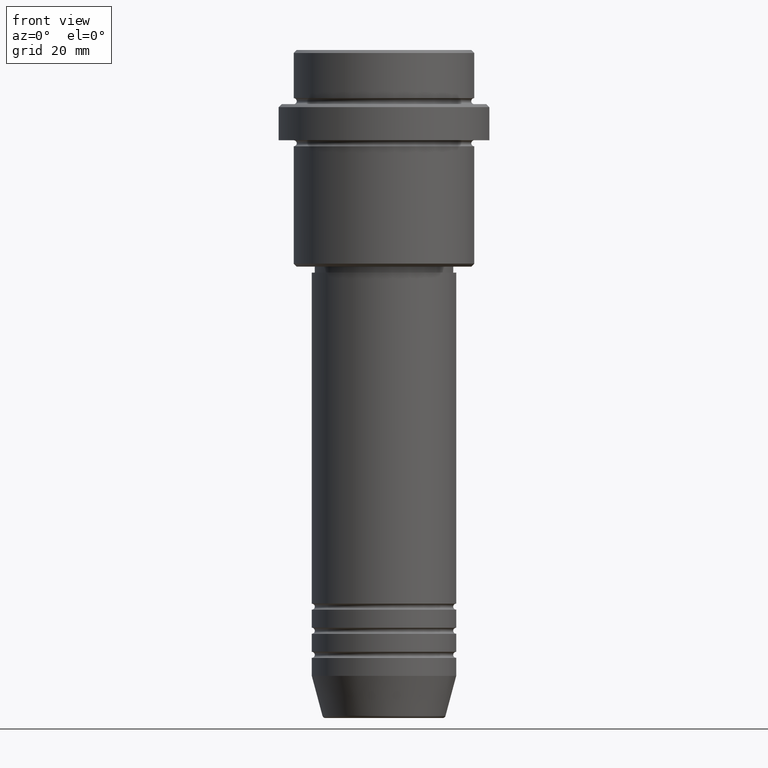
[diagram: clean part render]
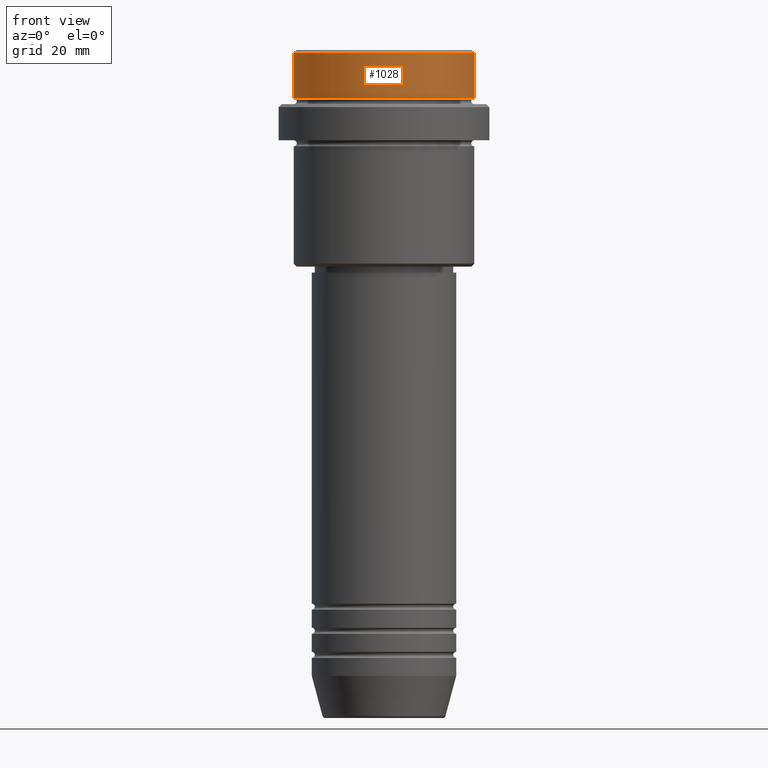
[diagram: same view with one face highlighted and labeled with its STEP entity id]
A machine part, front view. The second image highlights one B-rep face of the part: STEP entity #1028.
In plain terms, the highlighted cylindrical surface (partial cylindrical patch) has radius 15 mm, axis along (-0, -0, 1).
Its self-contained STEP definition (entity closure, byte-faithful):
#85 = DIRECTION ( 'NONE',  ( -0.000000000000000000, -0.000000000000000000, 1.000000000000000000 ) ) ;
#106 = CARTESIAN_POINT ( 'NONE',  ( 0.000000000000000000, 0.000000000000000000, 0.000000000000000000 ) ) ;
#125 = VERTEX_POINT ( 'NONE', #1140 ) ;
#133 = DIRECTION ( 'NONE',  ( 1.000000000000000000, 0.000000000000000000, 0.000000000000000000 ) ) ;
#149 = LINE ( 'NONE', #1370, #597 ) ;
#158 = ORIENTED_EDGE ( 'NONE', *, *, #1145, .T. ) ;
#160 = CARTESIAN_POINT ( 'NONE',  ( 15.00000000000000000, 0.000000000000000000, -0.4999999999999970024 ) ) ;
#166 = AXIS2_PLACEMENT_3D ( 'NONE', #1290, #85, #842 ) ;
#172 = DIRECTION ( 'NONE',  ( -0.000000000000000000, -0.000000000000000000, 1.000000000000000000 ) ) ;
#245 = AXIS2_PLACEMENT_3D ( 'NONE', #906, #603, #1249 ) ;
#361 = CARTESIAN_POINT ( 'NONE',  ( -15.00000000000000000, 1.836970198721029589E-15, 0.000000000000000000 ) ) ;
#370 = VECTOR ( 'NONE', #172, 1000.000000000000000 ) ;
#470 = EDGE_CURVE ( 'NONE', #491, #660, #869, .T. ) ;
#491 = VERTEX_POINT ( 'NONE', #160 ) ;
#550 = DIRECTION ( 'NONE',  ( -0.000000000000000000, -0.000000000000000000, 1.000000000000000000 ) ) ;
#597 = VECTOR ( 'NONE', #1021, 1000.000000000000000 ) ;
#603 = DIRECTION ( 'NONE',  ( 0.000000000000000000, 0.000000000000000000, -1.000000000000000000 ) ) ;
#658 = FACE_OUTER_BOUND ( 'NONE', #739, .T. ) ;
#660 = VERTEX_POINT ( 'NONE', #1148 ) ;
#719 = ORIENTED_EDGE ( 'NONE', *, *, #822, .T. ) ;
#739 = EDGE_LOOP ( 'NONE', ( #1274, #719, #158, #789 ) ) ;
#749 = VERTEX_POINT ( 'NONE', #1257 ) ;
#789 = ORIENTED_EDGE ( 'NONE', *, *, #470, .T. ) ;
#822 = EDGE_CURVE ( 'NONE', #125, #749, #1330, .T. ) ;
#842 = DIRECTION ( 'NONE',  ( 1.000000000000000000, 0.000000000000000000, 0.000000000000000000 ) ) ;
#869 = CIRCLE ( 'NONE', #245, 15.00000000000000000 ) ;
#906 = CARTESIAN_POINT ( 'NONE',  ( 0.000000000000000000, 0.000000000000000000, -0.4999999999999970024 ) ) ;
#936 = LINE ( 'NONE', #361, #370 ) ;
#1021 = DIRECTION ( 'NONE',  ( -0.000000000000000000, -0.000000000000000000, 1.000000000000000000 ) ) ;
#1028 = ADVANCED_FACE ( 'NONE', ( #658 ), #1113, .T. ) ;
#1089 = EDGE_CURVE ( 'NONE', #125, #660, #936, .T. ) ;
#1113 = CYLINDRICAL_SURFACE ( 'NONE', #1398, 15.00000000000000000 ) ;
#1140 = CARTESIAN_POINT ( 'NONE',  ( -15.00000000000000000, 1.836970198721029589E-15, -7.999999999999998224 ) ) ;
#1145 = EDGE_CURVE ( 'NONE', #749, #491, #149, .T. ) ;
#1148 = CARTESIAN_POINT ( 'NONE',  ( -15.00000000000000000, 1.836970198721029589E-15, -0.4999999999999970024 ) ) ;
#1249 = DIRECTION ( 'NONE',  ( 1.000000000000000000, 0.000000000000000000, 0.000000000000000000 ) ) ;
#1257 = CARTESIAN_POINT ( 'NONE',  ( 15.00000000000000000, 0.000000000000000000, -7.999999999999998224 ) ) ;
#1274 = ORIENTED_EDGE ( 'NONE', *, *, #1089, .F. ) ;
#1290 = CARTESIAN_POINT ( 'NONE',  ( 0.000000000000000000, 0.000000000000000000, -7.999999999999998224 ) ) ;
#1330 = CIRCLE ( 'NONE', #166, 15.00000000000000000 ) ;
#1370 = CARTESIAN_POINT ( 'NONE',  ( 15.00000000000000000, 0.000000000000000000, 0.000000000000000000 ) ) ;
#1398 = AXIS2_PLACEMENT_3D ( 'NONE', #106, #550, #133 ) ;